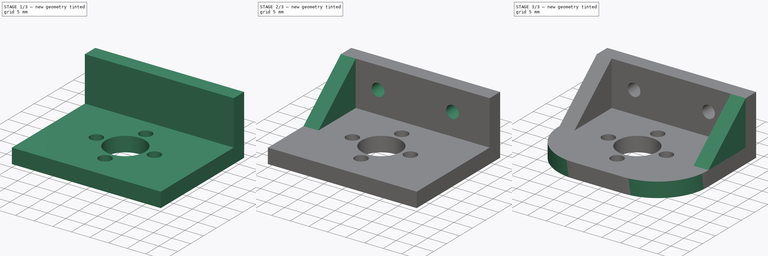
[diagram: build sequence overview — one tinted view per stage of 3, left to right]
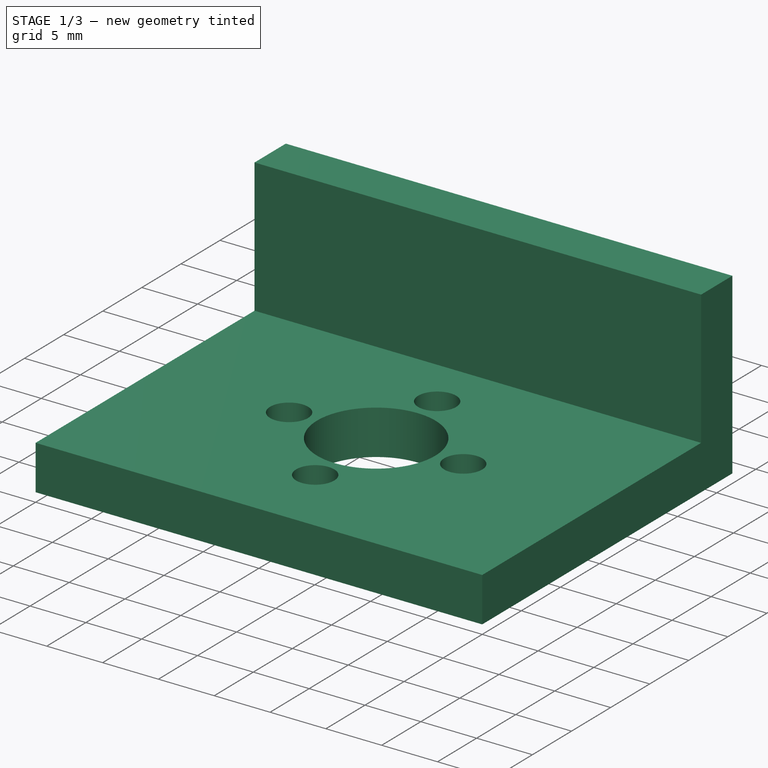
[diagram: stage 1 of 3 — iso view after this stage's code; geometry added in this stage tinted green]
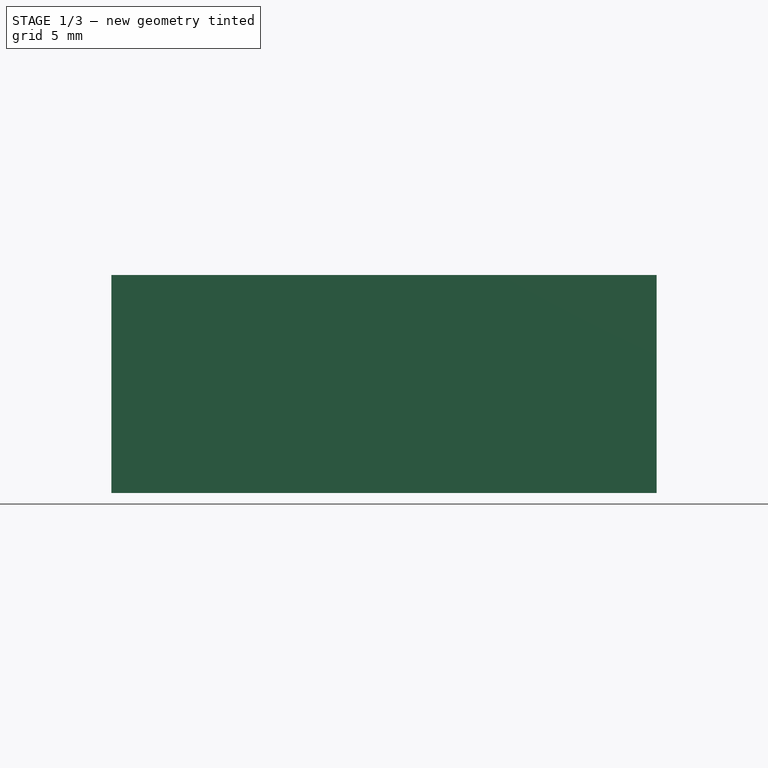
[diagram: stage 1 of 3 — front view after this stage's code; geometry added in this stage tinted green]
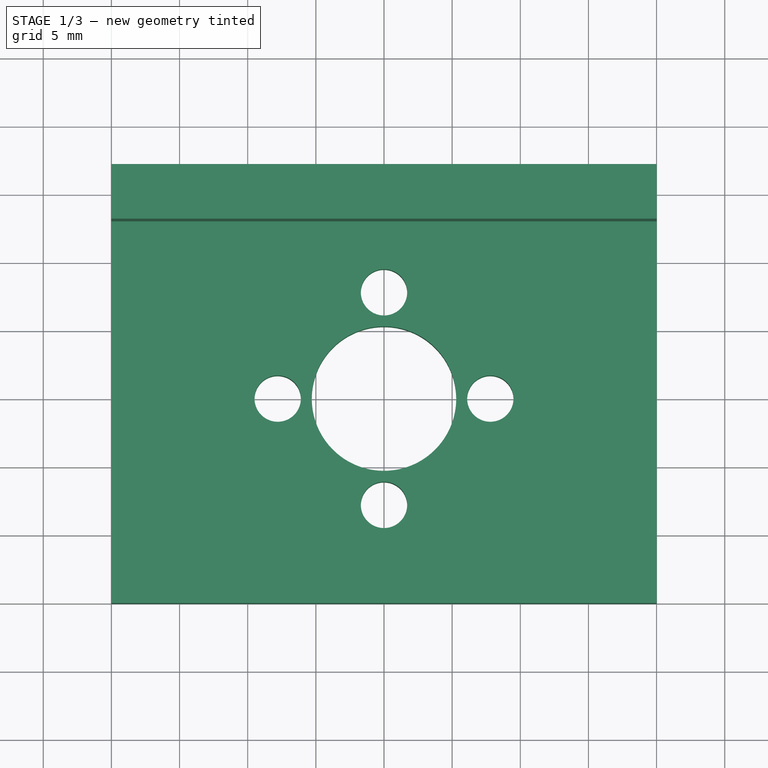
[diagram: stage 1 of 3 — top view after this stage's code; geometry added in this stage tinted green]
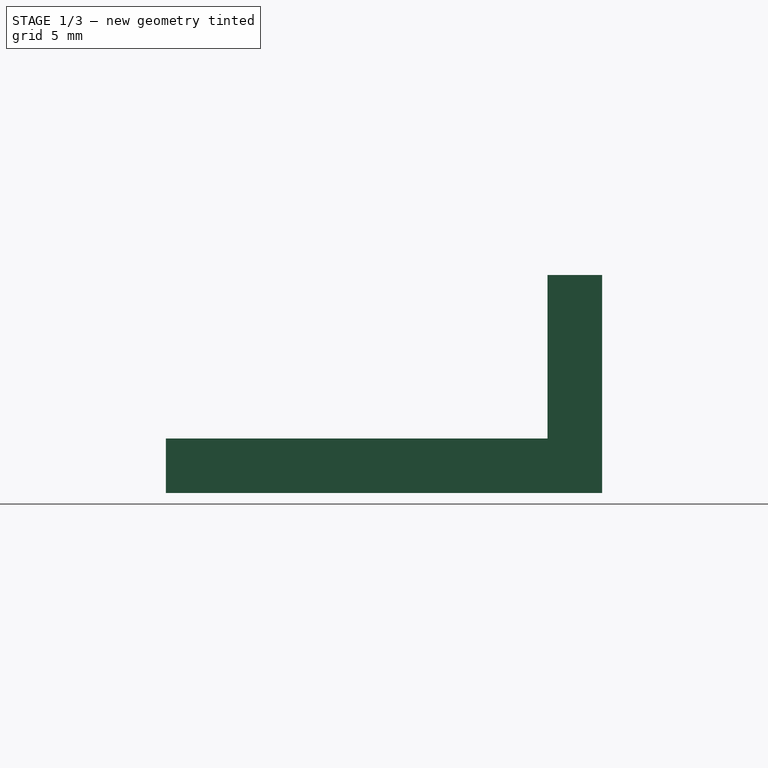
[diagram: stage 1 of 3 — right view after this stage's code; geometry added in this stage tinted green]
FCSTD DOCUMENT  (FreeCAD 0.16R6706 (Git))
Label: bed-mnt-middle
License: All rights reserved
LicenseURL: http://en.wikipedia.org/wiki/All_rights_reserved
objects: Sketcher::SketchObject×4, PartDesign::Pad×3, PartDesign::Draft×2, PartDesign::Pocket×1, PartDesign::Fillet×1
note: 15 computed .brp shape members not serialized (recipe doc carries the construction recipe); baked Part::Feature solids carry a one-line shape summary decoded from their .brp

FEATURE [Sketcher::SketchObject] Sketch
  sketch-geometry (9):
    g0: Circle CenterX=20 CenterY=15 CenterZ=0 NormalX=0 NormalY=0 NormalZ=1 Radius=5.3
    g1: LineSegment StartX=0 StartY=32 StartZ=0 EndX=40 EndY=32 EndZ=0
    g2: LineSegment StartX=40 StartY=32 StartZ=0 EndX=40 EndY=0 EndZ=0
    g3: LineSegment StartX=40 StartY=0 StartZ=0 EndX=0 EndY=0 EndZ=0
    g4: LineSegment StartX=0 StartY=0 StartZ=0 EndX=0 EndY=32 EndZ=0
    g5: Circle CenterX=20 CenterY=22.8 CenterZ=0 NormalX=0 NormalY=0 NormalZ=1 Radius=1.7
    g6: Circle CenterX=27.8 CenterY=15 CenterZ=0 NormalX=0 NormalY=0 NormalZ=1 Radius=1.7
    g7: Circle CenterX=20 CenterY=7.2 CenterZ=0 NormalX=0 NormalY=0 NormalZ=1 Radius=1.7
    g8: Circle CenterX=12.2 CenterY=15 CenterZ=0 NormalX=0 NormalY=0 NormalZ=1 Radius=1.7
  constraints (27):
    c: Radius(g0) = 5.3
    c: Coincident(g1,g2)
    c: Coincident(g2,g3)
    c: Coincident(g3,g4)
    c: Coincident(g4,g1)
    c: Horizontal(g1)
    c: Horizontal(g3)
    c: Vertical(g2)
    c: Vertical(g4)
    c: DistanceY(g3) = 0
    c: DistanceX(g1) = 0
    c: DistanceX(g1) = 40
    c: DistanceY(g1) = 32
    c: DistanceX(g0) = 20
    c: DistanceY(g0) = 15
    c: Radius(g5) = 1.7
    c: Equal(g5,g6)
    c: Equal(g6,g7)
    c: Equal(g7,g8)
    c: DistanceY(g8) = 15
    c: DistanceY(g6) = 15
    c: DistanceX(g5) = 20
    c: DistanceX(g7) = 20
    c: Distance(g7,g5) = 15.6
    c: Distance(g6,g0) = 7.8
    c: Distance(g6,g8) = 15.6
    c: Distance(g0,g5) = 7.8
FEATURE [PartDesign::Pad] Pad
  Length = 4
  Length2 = 100
  Sketch = -> Sketch
  Type = 0
FEATURE [Sketcher::SketchObject] Sketch001
  Placement = pos=(0,0,4) rot=(0,0,1;0rad)
  Support = -> Pad [Face11]
  sketch-geometry (4):
    g0: LineSegment StartX=0 StartY=32 StartZ=0 EndX=40 EndY=32 EndZ=0
    g1: LineSegment StartX=40 StartY=32 StartZ=0 EndX=40 EndY=28 EndZ=0
    g2: LineSegment StartX=40 StartY=28 StartZ=0 EndX=0 EndY=28 EndZ=0
    g3: LineSegment StartX=0 StartY=28 StartZ=0 EndX=0 EndY=32 EndZ=0
  constraints (12):
    c: Coincident(g0,g1)
    c: Coincident(g1,g2)
    c: Coincident(g2,g3)
    c: Coincident(g3,g0)
    c: Horizontal(g0)
    c: Horizontal(g2)
    c: Vertical(g1)
    c: Vertical(g3)
    c: DistanceX(g0) = 0
    c: DistanceX(g0) = 40
    c: DistanceY(g0) = 32
    c: DistanceY(g1) = 28
FEATURE [PartDesign::Pad] Pad001
  Length = 12
  Length2 = 100
  Sketch = -> Sketch001
  Type = 0
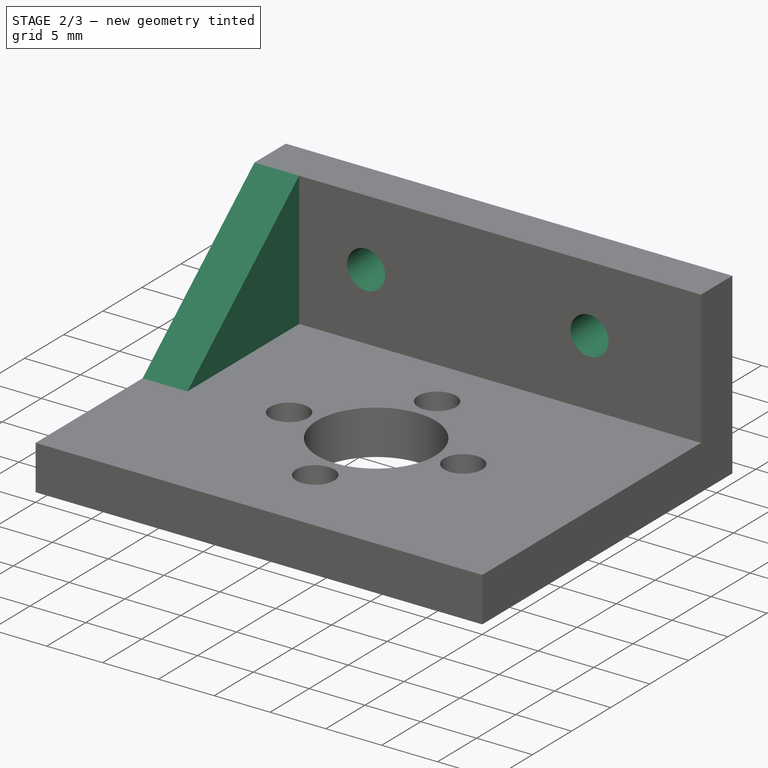
[diagram: stage 2 of 3 — iso view after this stage's code; geometry added in this stage tinted green]
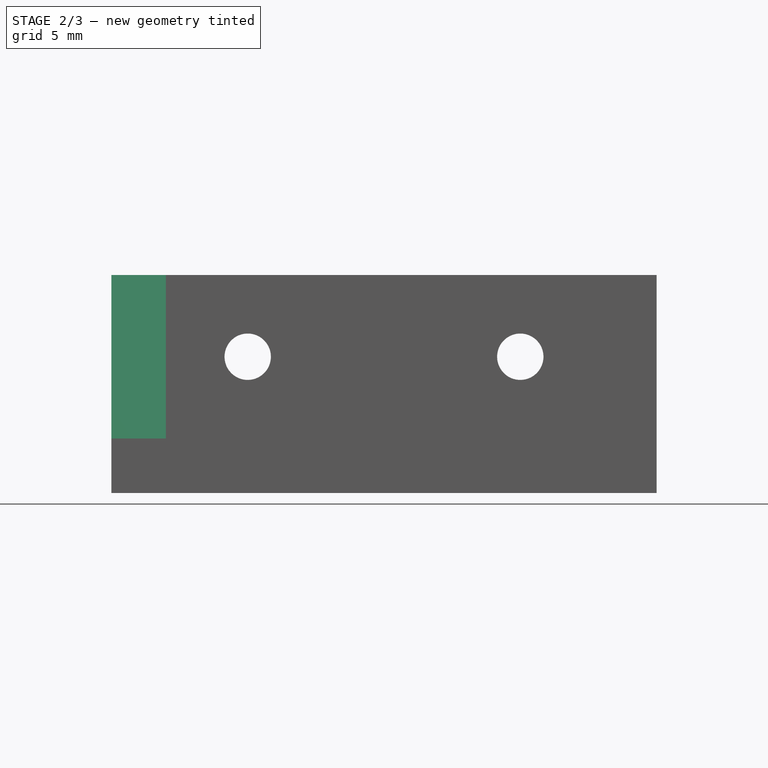
[diagram: stage 2 of 3 — front view after this stage's code; geometry added in this stage tinted green]
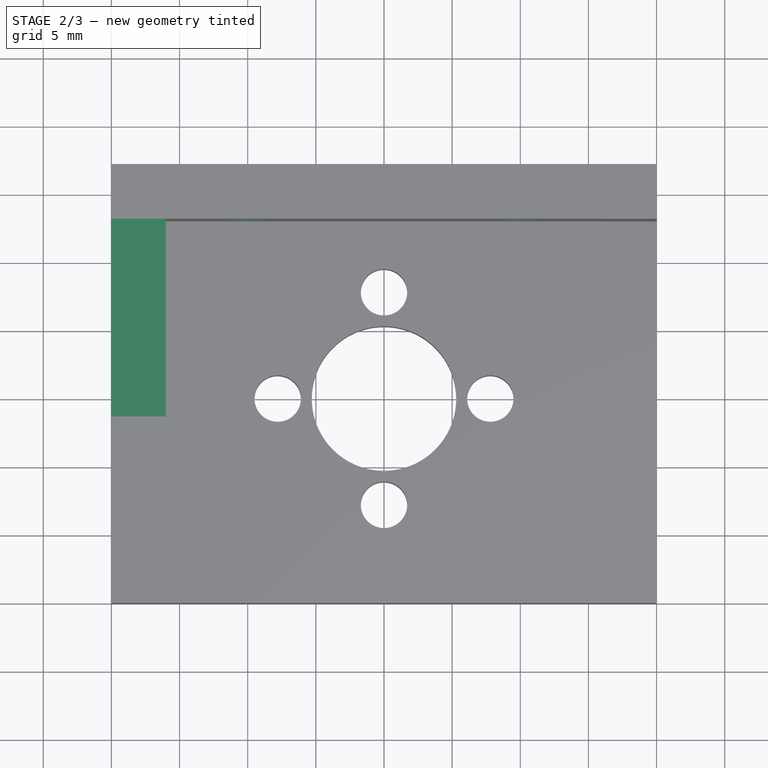
[diagram: stage 2 of 3 — top view after this stage's code; geometry added in this stage tinted green]
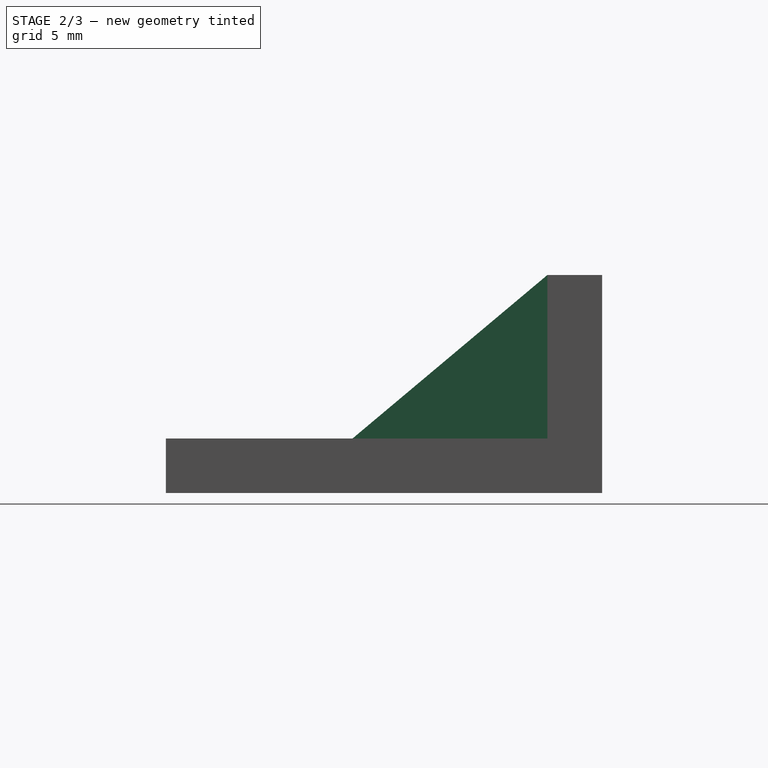
[diagram: stage 2 of 3 — right view after this stage's code; geometry added in this stage tinted green]
FEATURE [Sketcher::SketchObject] Sketch002
  Placement = pos=(0,28,0) rot=(1,0,0;1.5708rad)
  Support = -> Pad001 [Face16]
  sketch-geometry (8):
    g0: LineSegment StartX=0 StartY=16 StartZ=0 EndX=4 EndY=16 EndZ=0
    g1: LineSegment StartX=4 StartY=16 StartZ=0 EndX=4 EndY=4 EndZ=0
    g2: LineSegment StartX=4 StartY=4 StartZ=0 EndX=0 EndY=4 EndZ=0
    g3: LineSegment StartX=0 StartY=4 StartZ=0 EndX=0 EndY=16 EndZ=0
    g4: LineSegment StartX=36 StartY=16 StartZ=0 EndX=40 EndY=16 EndZ=0
    g5: LineSegment StartX=40 StartY=16 StartZ=0 EndX=40 EndY=4 EndZ=0
    g6: LineSegment StartX=40 StartY=4 StartZ=0 EndX=36 EndY=4 EndZ=0
    g7: LineSegment StartX=36 StartY=4 StartZ=0 EndX=36 EndY=16 EndZ=0
  constraints (24):
    c: Coincident(g0,g1)
    c: Coincident(g1,g2)
    c: Coincident(g2,g3)
    c: Coincident(g3,g0)
    c: Horizontal(g0)
    c: Horizontal(g2)
    c: Vertical(g1)
    c: Vertical(g3)
    c: Coincident(g4,g5)
    c: Coincident(g5,g6)
    c: Coincident(g6,g7)
    c: Coincident(g7,g4)
    c: Horizontal(g4)
    c: Horizontal(g6)
    c: Vertical(g5)
    c: Vertical(g7)
    c: Equal(g0,g4)
    c: Equal(g1,g5)
    c: DistanceX(g0) = 0
    c: DistanceX(g0) = 4
    c: DistanceY(g1) = 4
    c: DistanceY(g0) = 16
    c: DistanceY(g5) = 4
    c: DistanceX(g4) = 36
FEATURE [PartDesign::Pad] Pad002
  Length = 0.01
  Length2 = 100
  Sketch = -> Sketch002
  Type = 0
FEATURE [Sketcher::SketchObject] Sketch003
  Placement = pos=(0,32,0) rot=(0,0.707107,0.707107;3.14159rad)
  Support = -> Pad002 [Face11]
  sketch-geometry (8):
    g0: ArcOfCircle CenterX=-30 CenterY=10.001 CenterZ=0 NormalX=0 NormalY=0 NormalZ=1 Radius=1.7 StartAngle=0 EndAngle=3.14159
    g1: ArcOfCircle CenterX=-30 CenterY=10 CenterZ=0 NormalX=0 NormalY=0 NormalZ=1 Radius=1.7 StartAngle=3.14159 EndAngle=6.28319
    g2: LineSegment StartX=-31.7 StartY=10.001 StartZ=0 EndX=-31.7 EndY=10 EndZ=0
    g3: LineSegment StartX=-28.3 StartY=10.001 StartZ=0 EndX=-28.3 EndY=10 EndZ=0
    g4: ArcOfCircle CenterX=-10 CenterY=10.001 CenterZ=0 NormalX=0 NormalY=0 NormalZ=1 Radius=1.7 StartAngle=0 EndAngle=3.14159
    g5: ArcOfCircle CenterX=-10 CenterY=10 CenterZ=0 NormalX=0 NormalY=0 NormalZ=1 Radius=1.7 StartAngle=3.14159 EndAngle=6.28319
    g6: LineSegment StartX=-11.7 StartY=10.001 StartZ=0 EndX=-11.7 EndY=10 EndZ=0
    g7: LineSegment StartX=-8.3 StartY=10.001 StartZ=0 EndX=-8.3 EndY=10 EndZ=0
  constraints (20):
    c: Tangent(g0,g3) = 1.5708
    c: Tangent(g0,g2) = -1.5708
    c: Tangent(g2,g1) = -1.5708
    c: Tangent(g3,g1) = 1.5708
    c: Vertical(g2)
    c: Equal(g0,g1)
    c: Tangent(g4,g7) = 1.5708
    c: Tangent(g4,g6) = -1.5708
    c: Tangent(g6,g5) = -1.5708
    c: Tangent(g7,g5) = 1.5708
    c: Vertical(g6)
    c: Equal(g4,g5)
    c: Equal(g3,g7)
    c: Equal(g0,g4)
    c: Radius(g1) = 1.7
    c: Distance(g2) = 0.001
    c: DistanceY(g1) = 10
    c: DistanceY(g5) = 10
    c: DistanceX(g0) = -30
    c: DistanceX(g4) = -10
FEATURE [PartDesign::Pocket] Pocket
  Length = 5
  Sketch = -> Sketch003
  Type = 0
FEATURE [PartDesign::Draft] Draft
  Angle = 50
  Base = -> Pocket [Face29]
  NeutralPlane = -> Pocket [Face32]
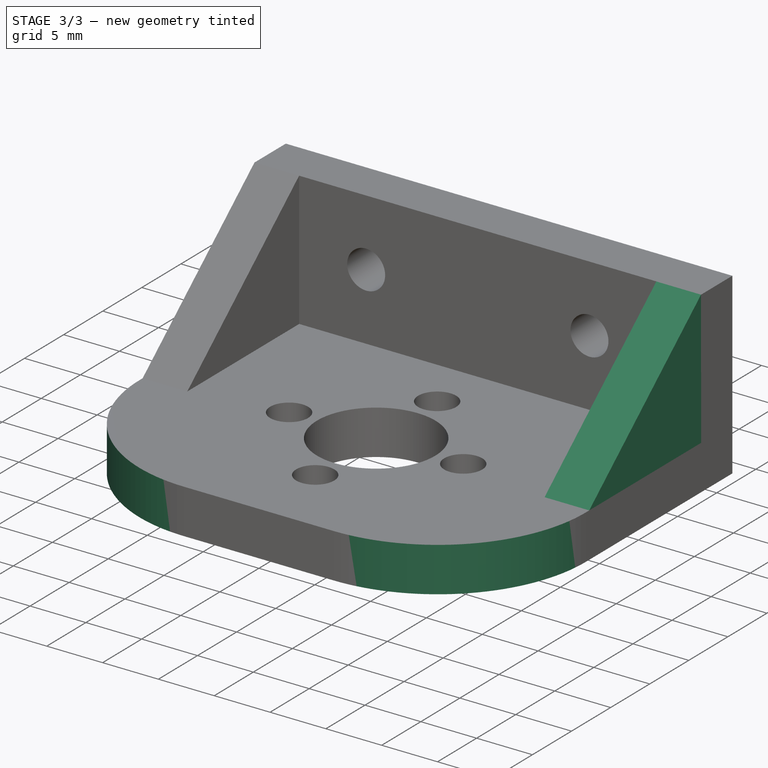
[diagram: stage 3 of 3 — iso view after this stage's code; geometry added in this stage tinted green]
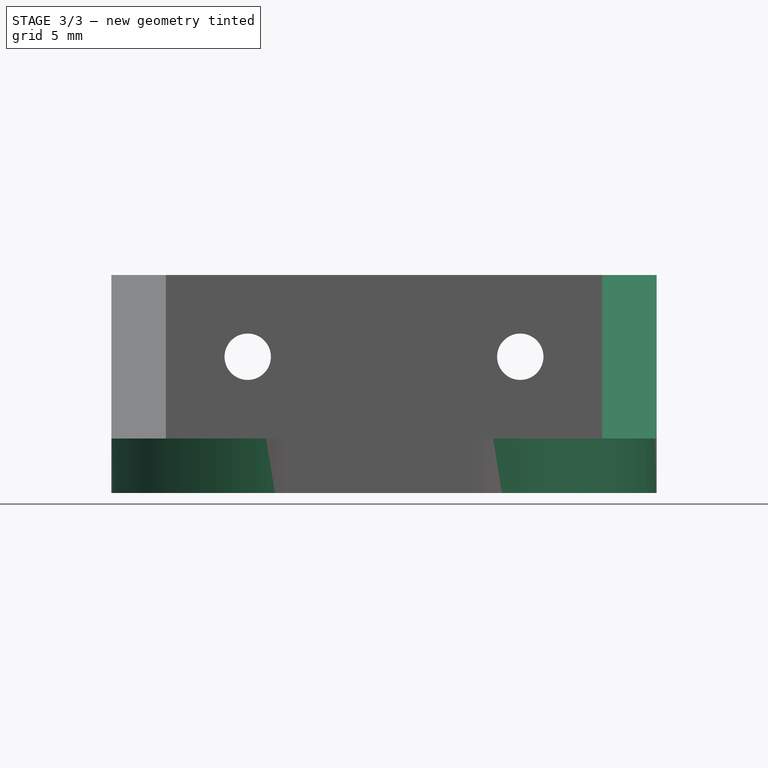
[diagram: stage 3 of 3 — front view after this stage's code; geometry added in this stage tinted green]
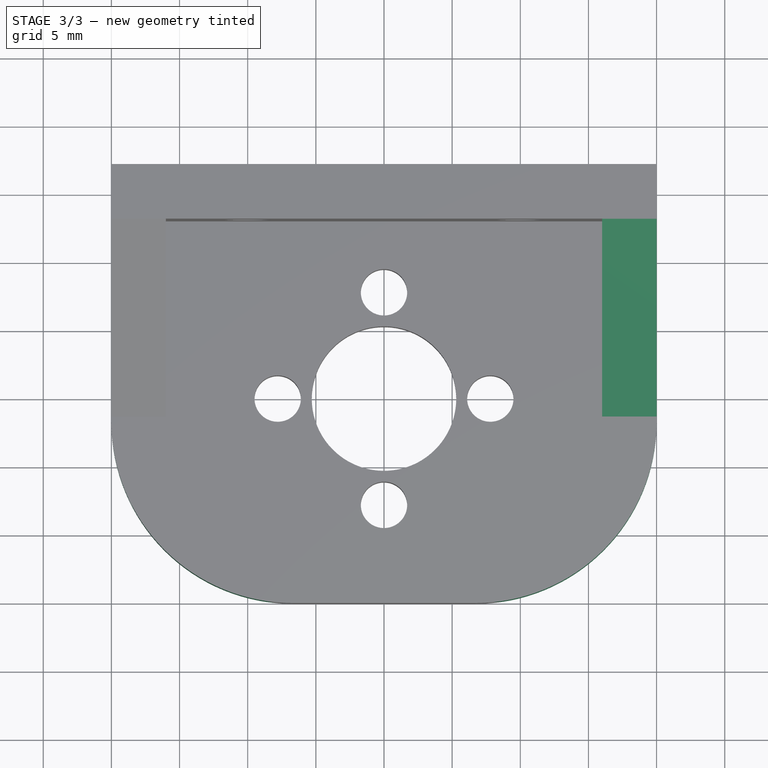
[diagram: stage 3 of 3 — top view after this stage's code; geometry added in this stage tinted green]
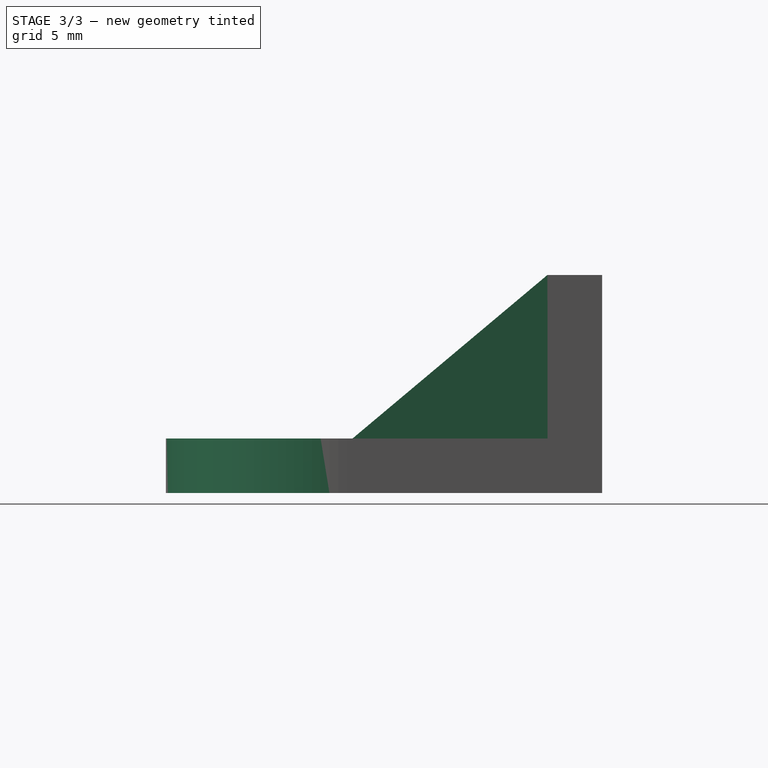
[diagram: stage 3 of 3 — right view after this stage's code; geometry added in this stage tinted green]
FEATURE [PartDesign::Draft] Draft001
  Angle = 50
  Base = -> Draft [Face27]
  NeutralPlane = -> Draft [Face26]
FEATURE [PartDesign::Fillet] Fillet
  Base = -> Draft001 [Edge17,Edge14]
  Radius = 13.3
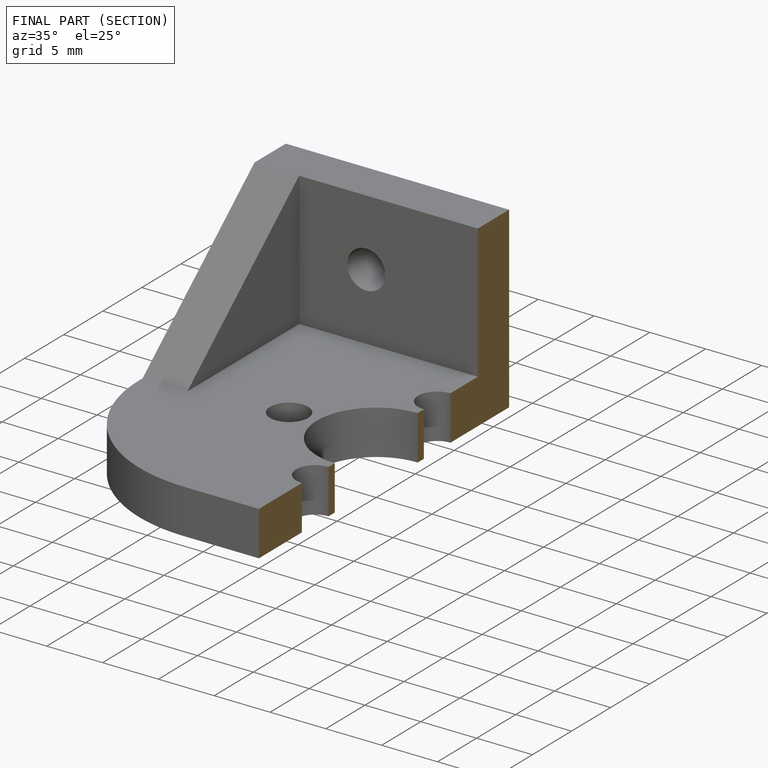
[diagram: finished part — half-section view (interior)]
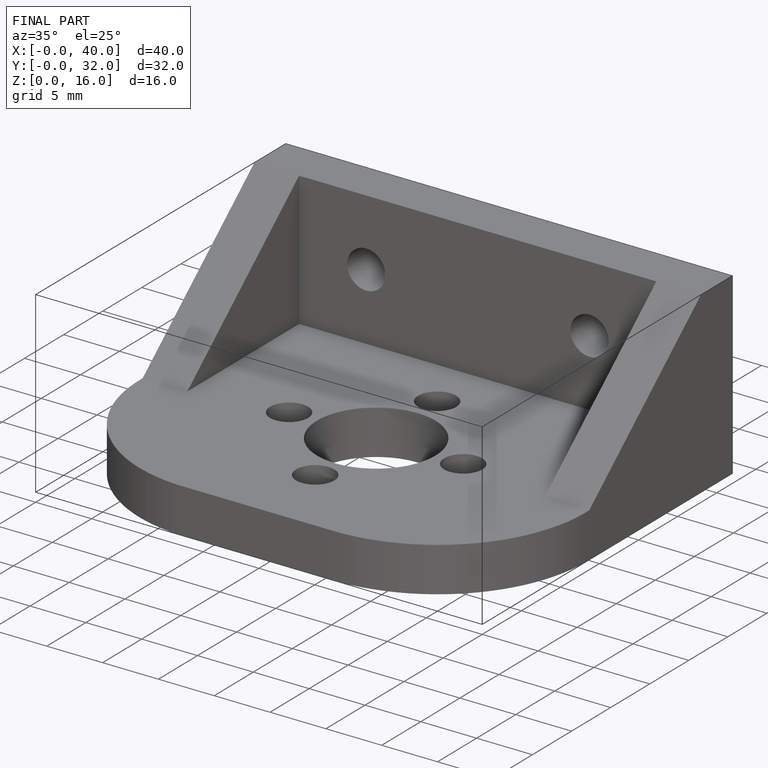
[diagram: finished part — iso view with bounding-box wireframe]
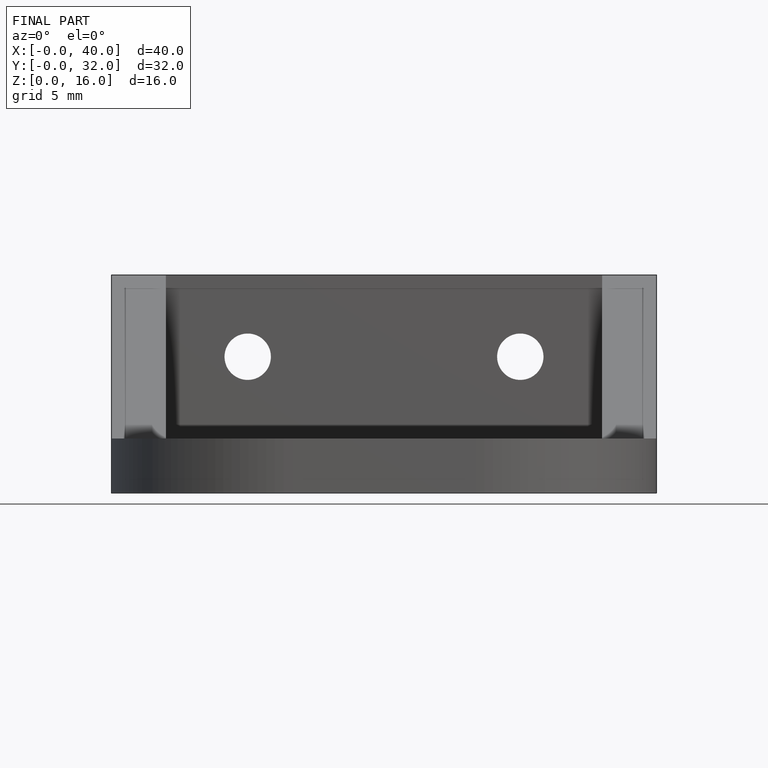
[diagram: finished part — front view with bounding-box wireframe]
